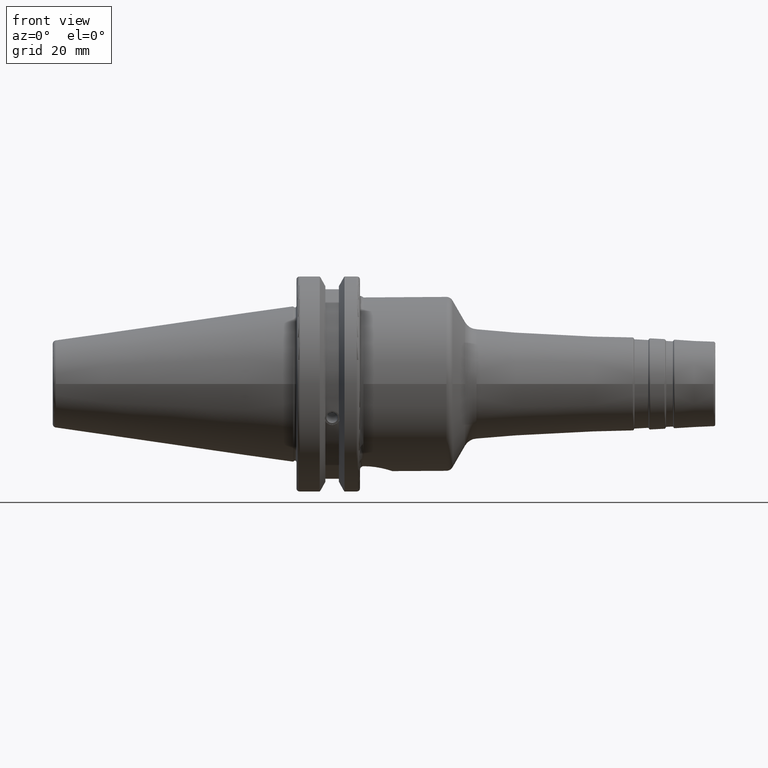
[diagram: clean part render]
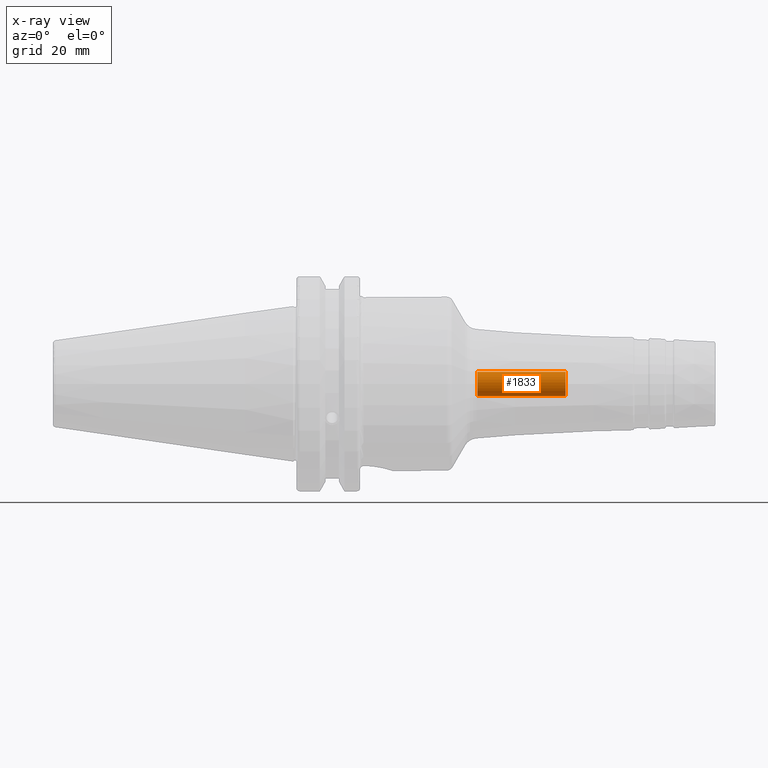
[diagram: x-ray — body ghosted, one internal face saturated and labeled with its STEP entity id]
A machine part, front view, then the same camera in x-ray: the body is ghosted and one INTERNAL B-rep face — a face not visible from any outside direction — is saturated and labeled: STEP entity #1833.
In plain terms, the highlighted cylindrical surface (bore or boss wall) has radius 3.4585 mm, axis along (1, 0, 0).
Its self-contained STEP definition (entity closure, byte-faithful):
#156=CYLINDRICAL_SURFACE('',#1969,3.4585);
#188=FACE_OUTER_BOUND('',#297,.T.);
#297=EDGE_LOOP('',(#1241,#1242,#1243,#1244,#1245));
#417=LINE('',#2909,#515);
#515=VECTOR('',#2239,3.4585);
#613=CIRCLE('',#1966,3.4585);
#614=CIRCLE('',#1967,3.4585);
#615=CIRCLE('',#1970,3.4585);
#738=VERTEX_POINT('',#2823);
#739=VERTEX_POINT('',#2825);
#744=VERTEX_POINT('',#2907);
#934=EDGE_CURVE('',#739,#738,#613,.T.);
#935=EDGE_CURVE('',#738,#739,#614,.T.);
#941=EDGE_CURVE('',#744,#744,#615,.T.);
#942=EDGE_CURVE('',#744,#739,#417,.T.);
#1241=ORIENTED_EDGE('',*,*,#941,.F.);
#1242=ORIENTED_EDGE('',*,*,#942,.T.);
#1243=ORIENTED_EDGE('',*,*,#934,.T.);
#1244=ORIENTED_EDGE('',*,*,#935,.T.);
#1245=ORIENTED_EDGE('',*,*,#942,.F.);
#1833=ADVANCED_FACE('',(#188),#156,.F.);
#1966=AXIS2_PLACEMENT_3D('',#2826,#2228,#2229);
#1967=AXIS2_PLACEMENT_3D('',#2827,#2230,#2231);
#1969=AXIS2_PLACEMENT_3D('',#2906,#2235,#2236);
#1970=AXIS2_PLACEMENT_3D('',#2908,#2237,#2238);
#2228=DIRECTION('center_axis',(-1.,0.,0.));
#2229=DIRECTION('ref_axis',(0.,0.,-1.));
#2230=DIRECTION('center_axis',(-1.,0.,0.));
#2231=DIRECTION('ref_axis',(0.,0.,-1.));
#2235=DIRECTION('center_axis',(1.,0.,0.));
#2236=DIRECTION('ref_axis',(0.,0.,-1.));
#2237=DIRECTION('center_axis',(-1.,0.,0.));
#2238=DIRECTION('ref_axis',(0.,0.,-1.));
#2239=DIRECTION('',(-1.,0.,0.));
#2823=CARTESIAN_POINT('',(52.3757963347172,-4.23544095485111E-16,-3.45849999999999));
#2825=CARTESIAN_POINT('',(52.3757963347172,4.23544095485112E-16,3.4585));
#2826=CARTESIAN_POINT('Origin',(52.3757963347172,0.,0.));
#2827=CARTESIAN_POINT('Origin',(52.3757963347172,0.,0.));
#2906=CARTESIAN_POINT('Origin',(-130.351752267045,0.,0.));
#2907=CARTESIAN_POINT('',(77.5,-4.23544095485112E-16,3.4585));
#2908=CARTESIAN_POINT('Origin',(77.5,0.,0.));
#2909=CARTESIAN_POINT('',(-130.351752267045,-4.23544095485112E-16,3.4585));